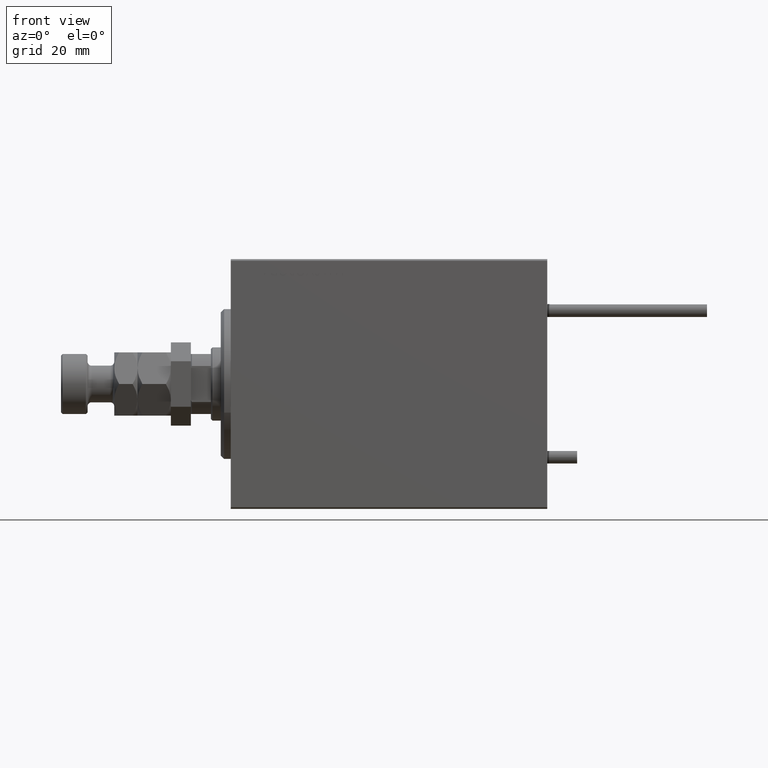
[diagram: clean part render]
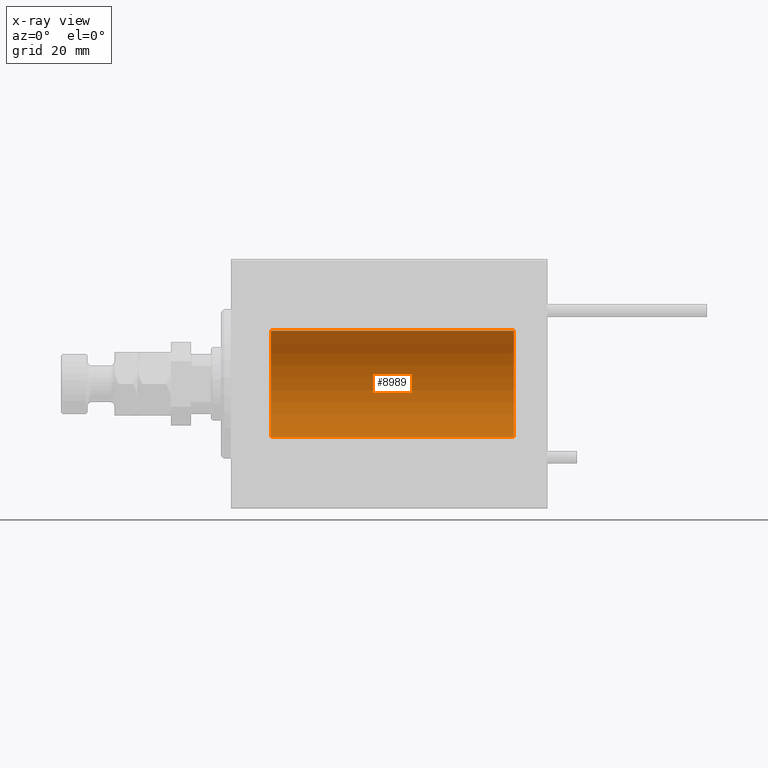
[diagram: x-ray — body ghosted, one internal face saturated and labeled with its STEP entity id]
A machine part, front view, then the same camera in x-ray: the body is ghosted and one INTERNAL B-rep face — a face not visible from any outside direction — is saturated and labeled: STEP entity #8989.
In plain terms, the highlighted cylindrical surface (partial cylindrical patch) has radius 16 mm, axis along (-1, -0, -0).
Its self-contained STEP definition (entity closure, byte-faithful):
#489 = EDGE_CURVE ( 'NONE', #39025, #38492, #40982, .T. ) ;
#951 = ORIENTED_EDGE ( 'NONE', *, *, #35068, .F. ) ;
#2147 = CARTESIAN_POINT ( 'NONE',  ( 85.00000000000000000, 1.959434878635765131E-15, -16.00000000000000000 ) ) ;
#2203 = DIRECTION ( 'NONE',  ( -1.000000000000000000, 0.000000000000000000, 0.000000000000000000 ) ) ;
#2491 = CARTESIAN_POINT ( 'NONE',  ( 85.00000000000000000, 0.000000000000000000, 16.00000000000000000 ) ) ;
#3485 = CARTESIAN_POINT ( 'NONE',  ( 85.00000000000000000, 0.000000000000000000, 16.00000000000000000 ) ) ;
#5267 = CARTESIAN_POINT ( 'NONE',  ( 85.00000000000000000, 1.959434878635765131E-15, -16.00000000000000000 ) ) ;
#5914 = VECTOR ( 'NONE', #23259, 1000.000000000000000 ) ;
#7447 = EDGE_CURVE ( 'NONE', #16095, #19816, #22767, .T. ) ;
#8024 = CIRCLE ( 'NONE', #16364, 16.00000000000000000 ) ;
#8989 = ADVANCED_FACE ( 'NONE', ( #15572 ), #39325, .F. ) ;
#15572 = FACE_OUTER_BOUND ( 'NONE', #23656, .T. ) ;
#16095 = VERTEX_POINT ( 'NONE', #2491 ) ;
#16364 = AXIS2_PLACEMENT_3D ( 'NONE', #34234, #2203, #22750 ) ;
#17109 = CARTESIAN_POINT ( 'NONE',  ( 11.99999999999999645, 0.000000000000000000, 16.00000000000000000 ) ) ;
#17485 = ORIENTED_EDGE ( 'NONE', *, *, #7447, .T. ) ;
#18981 = CARTESIAN_POINT ( 'NONE',  ( 85.00000000000000000, 0.000000000000000000, 0.000000000000000000 ) ) ;
#19056 = CIRCLE ( 'NONE', #29084, 16.00000000000000000 ) ;
#19816 = VERTEX_POINT ( 'NONE', #17109 ) ;
#21730 = VECTOR ( 'NONE', #37062, 1000.000000000000000 ) ;
#22073 = CARTESIAN_POINT ( 'NONE',  ( 11.99999999999999645, 0.000000000000000000, 0.000000000000000000 ) ) ;
#22284 = ORIENTED_EDGE ( 'NONE', *, *, #45049, .T. ) ;
#22750 = DIRECTION ( 'NONE',  ( 0.000000000000000000, 0.000000000000000000, 1.000000000000000000 ) ) ;
#22767 = LINE ( 'NONE', #3485, #5914 ) ;
#23259 = DIRECTION ( 'NONE',  ( -1.000000000000000000, -0.000000000000000000, -0.000000000000000000 ) ) ;
#23656 = EDGE_LOOP ( 'NONE', ( #35823, #951, #17485, #22284 ) ) ;
#26709 = CARTESIAN_POINT ( 'NONE',  ( 11.99999999999999645, 1.959434878635765131E-15, -16.00000000000000000 ) ) ;
#27556 = DIRECTION ( 'NONE',  ( 0.000000000000000000, 0.000000000000000000, 1.000000000000000000 ) ) ;
#28395 = AXIS2_PLACEMENT_3D ( 'NONE', #18981, #38571, #27556 ) ;
#29084 = AXIS2_PLACEMENT_3D ( 'NONE', #22073, #40175, #32340 ) ;
#32340 = DIRECTION ( 'NONE',  ( 0.000000000000000000, 0.000000000000000000, 1.000000000000000000 ) ) ;
#34234 = CARTESIAN_POINT ( 'NONE',  ( 85.00000000000000000, 0.000000000000000000, 0.000000000000000000 ) ) ;
#35068 = EDGE_CURVE ( 'NONE', #16095, #39025, #8024, .T. ) ;
#35823 = ORIENTED_EDGE ( 'NONE', *, *, #489, .F. ) ;
#37062 = DIRECTION ( 'NONE',  ( -1.000000000000000000, -0.000000000000000000, -0.000000000000000000 ) ) ;
#38492 = VERTEX_POINT ( 'NONE', #26709 ) ;
#38571 = DIRECTION ( 'NONE',  ( -1.000000000000000000, -0.000000000000000000, -0.000000000000000000 ) ) ;
#39025 = VERTEX_POINT ( 'NONE', #2147 ) ;
#39325 = CYLINDRICAL_SURFACE ( 'NONE', #28395, 16.00000000000000000 ) ;
#40175 = DIRECTION ( 'NONE',  ( -1.000000000000000000, 0.000000000000000000, 0.000000000000000000 ) ) ;
#40982 = LINE ( 'NONE', #5267, #21730 ) ;
#45049 = EDGE_CURVE ( 'NONE', #19816, #38492, #19056, .T. ) ;